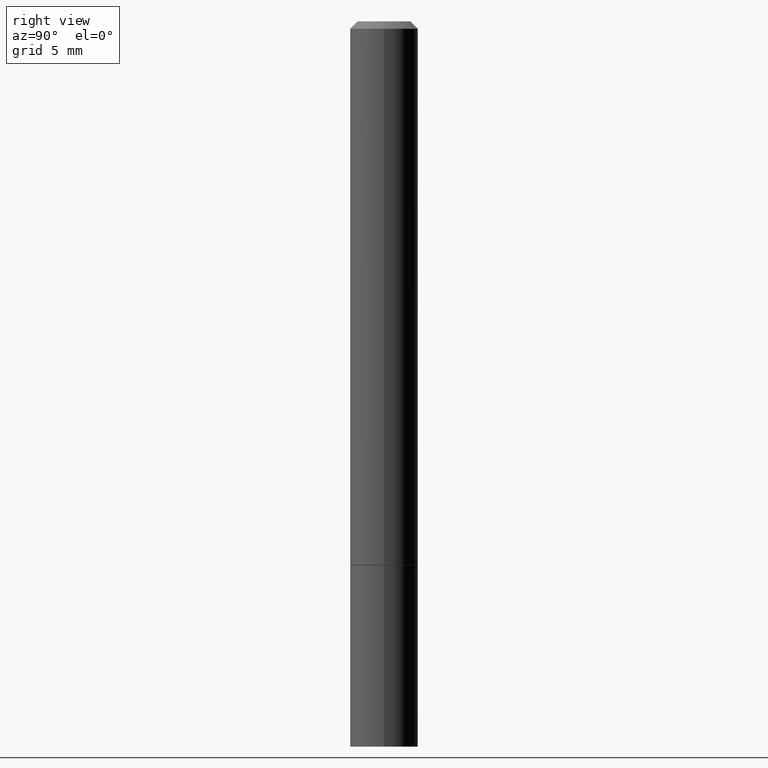
[diagram: clean part render]
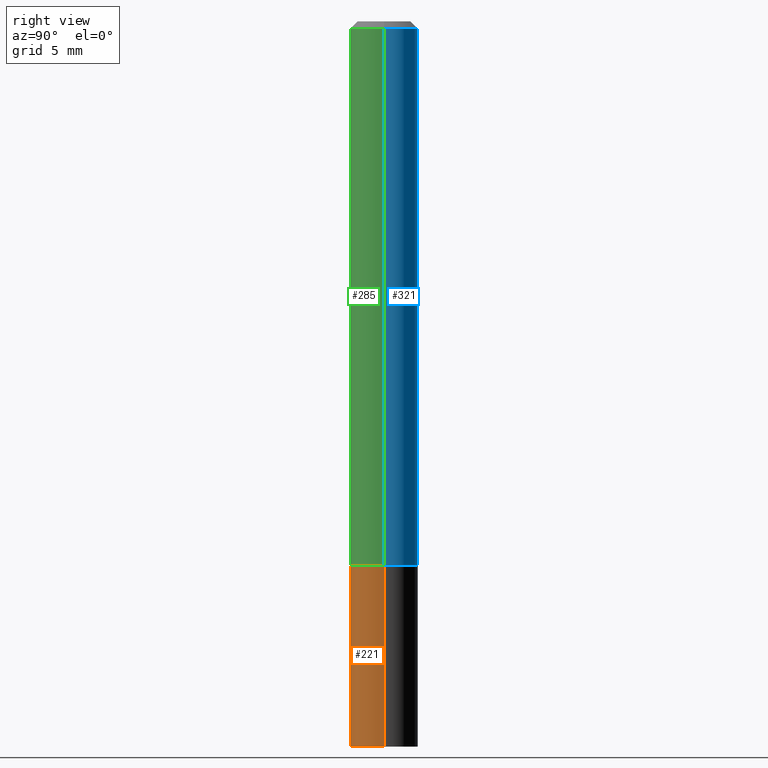
[diagram: same view with three faces highlighted in distinct colors, each labeled with its STEP entity id]
A machine part, right view with three faces highlighted in distinct colors.
Their STEP definitions:

[orange] entity #221 — the highlighted cylindrical surface (edge-blend (fillet) strip) has radius 2.3813 mm, axis along (-0, 0, 1).
#7 = EDGE_CURVE ( 'NONE', #115, #194, #32, .T. ) ;
#22 = ORIENTED_EDGE ( 'NONE', *, *, #291, .F. ) ;
#27 = ORIENTED_EDGE ( 'NONE', *, *, #64, .F. ) ;
#32 = CIRCLE ( 'NONE', #84, 0.09375000000000001388 ) ;
#45 = CARTESIAN_POINT ( 'NONE',  ( -0.09375000000000001388, -5.443958528200409958E-15, -2.000000000000000000 ) ) ;
#60 = AXIS2_PLACEMENT_3D ( 'NONE', #348, #234, #97 ) ;
#64 = EDGE_CURVE ( 'NONE', #115, #249, #70, .T. ) ;
#70 = LINE ( 'NONE', #358, #206 ) ;
#77 = VECTOR ( 'NONE', #78, 39.37007874015748143 ) ;
#78 = DIRECTION ( 'NONE',  ( -2.445468806185136877E-29, 3.491481338843145188E-15, 1.000000000000000000 ) ) ;
#84 = AXIS2_PLACEMENT_3D ( 'NONE', #230, #365, #307 ) ;
#87 = CARTESIAN_POINT ( 'NONE',  ( 0.09375000000000001388, -7.637615428719378669E-15, -2.000000000000000000 ) ) ;
#97 = DIRECTION ( 'NONE',  ( 1.000000000000000000, -6.982962677686261189E-15, 0.000000000000000000 ) ) ;
#111 = CARTESIAN_POINT ( 'NONE',  ( 0.09375000000000001388, -5.891874759297804892E-15, -1.499999999999999778 ) ) ;
#115 = VERTEX_POINT ( 'NONE', #45 ) ;
#135 = CIRCLE ( 'NONE', #60, 0.09375000000000001388 ) ;
#151 = ORIENTED_EDGE ( 'NONE', *, *, #316, .T. ) ;
#157 = CARTESIAN_POINT ( 'NONE',  ( -0.09375000000000001388, -5.443958528200409958E-15, -1.499999999999999778 ) ) ;
#159 = CYLINDRICAL_SURFACE ( 'NONE', #172, 0.09375000000000001388 ) ;
#172 = AXIS2_PLACEMENT_3D ( 'NONE', #280, #366, #284 ) ;
#181 = CARTESIAN_POINT ( 'NONE',  ( 0.09375000000000001388, -6.546527510330875041E-16, 4.571415727308690506E-30 ) ) ;
#194 = VERTEX_POINT ( 'NONE', #87 ) ;
#206 = VECTOR ( 'NONE', #364, 39.37007874015748143 ) ;
#221 = ADVANCED_FACE ( 'NONE', ( #306 ), #159, .T. ) ;
#230 = CARTESIAN_POINT ( 'NONE',  ( 4.890937612370273194E-29, -6.982962677686291165E-15, -2.000000000000000000 ) ) ;
#234 = DIRECTION ( 'NONE',  ( -2.445468806185136597E-29, 3.491481338843145583E-15, 1.000000000000000000 ) ) ;
#236 = VERTEX_POINT ( 'NONE', #111 ) ;
#242 = LINE ( 'NONE', #181, #77 ) ;
#249 = VERTEX_POINT ( 'NONE', #157 ) ;
#280 = CARTESIAN_POINT ( 'NONE',  ( 0.000000000000000000, 0.000000000000000000, 0.000000000000000000 ) ) ;
#284 = DIRECTION ( 'NONE',  ( 1.000000000000000000, -6.982962677686265922E-15, 4.876176775795935793E-29 ) ) ;
#291 = EDGE_CURVE ( 'NONE', #249, #236, #135, .T. ) ;
#306 = FACE_OUTER_BOUND ( 'NONE', #327, .T. ) ;
#307 = DIRECTION ( 'NONE',  ( 1.000000000000000000, -6.982962677686261189E-15, 0.000000000000000000 ) ) ;
#316 = EDGE_CURVE ( 'NONE', #194, #236, #242, .T. ) ;
#327 = EDGE_LOOP ( 'NONE', ( #27, #347, #151, #22 ) ) ;
#347 = ORIENTED_EDGE ( 'NONE', *, *, #7, .T. ) ;
#348 = CARTESIAN_POINT ( 'NONE',  ( 3.668203209277704335E-29, -5.237222008264717388E-15, -1.499999999999999778 ) ) ;
#358 = CARTESIAN_POINT ( 'NONE',  ( -0.09375000000000001388, 6.661338147750940229E-16, -4.611501647113973995E-30 ) ) ;
#364 = DIRECTION ( 'NONE',  ( -2.445468806185136877E-29, 3.491481338843145188E-15, 1.000000000000000000 ) ) ;
#365 = DIRECTION ( 'NONE',  ( -2.445468806185136597E-29, 3.491481338843145583E-15, 1.000000000000000000 ) ) ;
#366 = DIRECTION ( 'NONE',  ( -2.445468806185136597E-29, 3.491481338843145583E-15, 1.000000000000000000 ) ) ;

[blue] entity #321 — the highlighted cylindrical surface (edge-blend (fillet) strip) has radius 2.3812 mm, axis along (-0, 0, 1).
#25 = CIRCLE ( 'NONE', #326, 0.09375000000000001388 ) ;
#30 = DIRECTION ( 'NONE',  ( 1.000000000000000000, -6.982962677686266711E-15, 4.876176775795935793E-29 ) ) ;
#35 = FACE_OUTER_BOUND ( 'NONE', #217, .T. ) ;
#43 = CARTESIAN_POINT ( 'NONE',  ( 3.665757740471518171E-29, -5.233730526925873592E-15, -1.498999999999999444 ) ) ;
#55 = CARTESIAN_POINT ( 'NONE',  ( 0.09374999999999991673, -6.546527510330869125E-16, 4.571415727308685602E-30 ) ) ;
#58 = CARTESIAN_POINT ( 'NONE',  ( -0.09375000000000001388, -1.985646262076272154E-15, -1.498999999999999444 ) ) ;
#71 = DIRECTION ( 'NONE',  ( -2.445468806185136877E-29, 3.491481338843145188E-15, 1.000000000000000000 ) ) ;
#75 = DIRECTION ( 'NONE',  ( 1.000000000000000000, -6.982962677686261189E-15, 0.000000000000000000 ) ) ;
#91 = ORIENTED_EDGE ( 'NONE', *, *, #245, .F. ) ;
#116 = ORIENTED_EDGE ( 'NONE', *, *, #255, .T. ) ;
#129 = ORIENTED_EDGE ( 'NONE', *, *, #149, .F. ) ;
#137 = VERTEX_POINT ( 'NONE', #313 ) ;
#141 = VERTEX_POINT ( 'NONE', #265 ) ;
#149 = EDGE_CURVE ( 'NONE', #137, #179, #257, .T. ) ;
#163 = CARTESIAN_POINT ( 'NONE',  ( 0.000000000000000000, 0.000000000000000000, 0.000000000000000000 ) ) ;
#164 = VECTOR ( 'NONE', #190, 39.37007874015748143 ) ;
#179 = VERTEX_POINT ( 'NONE', #254 ) ;
#185 = DIRECTION ( 'NONE',  ( -2.445468806185136597E-29, 3.491481338843145583E-15, 1.000000000000000000 ) ) ;
#190 = DIRECTION ( 'NONE',  ( -2.445468806185136877E-29, 3.491481338843145188E-15, 1.000000000000000000 ) ) ;
#193 = CARTESIAN_POINT ( 'NONE',  ( -0.09374999999999991673, 6.661338147750933326E-16, -4.611501647113969791E-30 ) ) ;
#198 = CIRCLE ( 'NONE', #345, 0.09374999999999981959 ) ;
#205 = AXIS2_PLACEMENT_3D ( 'NONE', #163, #290, #30 ) ;
#209 = VERTEX_POINT ( 'NONE', #58 ) ;
#217 = EDGE_LOOP ( 'NONE', ( #116, #298, #91, #129 ) ) ;
#245 = EDGE_CURVE ( 'NONE', #179, #141, #198, .T. ) ;
#254 = CARTESIAN_POINT ( 'NONE',  ( 0.09374999999999981959, -7.130013140679428044E-16, -0.02000000000000003511 ) ) ;
#255 = EDGE_CURVE ( 'NONE', #137, #209, #25, .T. ) ;
#257 = LINE ( 'NONE', #55, #164 ) ;
#259 = VECTOR ( 'NONE', #71, 39.37007874015748143 ) ;
#265 = CARTESIAN_POINT ( 'NONE',  ( -0.09374999999999981959, 5.848231242562233185E-16, -0.02000000000000003511 ) ) ;
#290 = DIRECTION ( 'NONE',  ( -2.445468806185136597E-29, 3.491481338843145583E-15, 1.000000000000000000 ) ) ;
#294 = LINE ( 'NONE', #193, #259 ) ;
#296 = CYLINDRICAL_SURFACE ( 'NONE', #205, 0.09374999999999991673 ) ;
#298 = ORIENTED_EDGE ( 'NONE', *, *, #337, .T. ) ;
#308 = DIRECTION ( 'NONE',  ( 1.000000000000000000, -6.982962677686266711E-15, 0.000000000000000000 ) ) ;
#313 = CARTESIAN_POINT ( 'NONE',  ( 0.09375000000000001388, -5.888383277958961096E-15, -1.498999999999999444 ) ) ;
#321 = ADVANCED_FACE ( 'NONE', ( #35 ), #296, .T. ) ;
#326 = AXIS2_PLACEMENT_3D ( 'NONE', #43, #185, #75 ) ;
#335 = DIRECTION ( 'NONE',  ( -2.445468806185136597E-29, 3.491481338843145583E-15, 1.000000000000000000 ) ) ;
#337 = EDGE_CURVE ( 'NONE', #209, #141, #294, .T. ) ;
#343 = CARTESIAN_POINT ( 'NONE',  ( 4.890937612370281041E-31, -6.982962677686302702E-17, -0.02000000000000003511 ) ) ;
#345 = AXIS2_PLACEMENT_3D ( 'NONE', #343, #335, #308 ) ;

[green] entity #285 — the highlighted cylindrical surface (edge-blend (fillet) strip) has radius 2.3812 mm, axis along (-0, 0, 1).
#12 = DIRECTION ( 'NONE',  ( 1.000000000000000000, -6.982962677686266711E-15, 4.876176775795935793E-29 ) ) ;
#20 = CYLINDRICAL_SURFACE ( 'NONE', #227, 0.09374999999999991673 ) ;
#44 = ORIENTED_EDGE ( 'NONE', *, *, #215, .F. ) ;
#51 = FACE_OUTER_BOUND ( 'NONE', #338, .T. ) ;
#55 = CARTESIAN_POINT ( 'NONE',  ( 0.09374999999999991673, -6.546527510330869125E-16, 4.571415727308685602E-30 ) ) ;
#58 = CARTESIAN_POINT ( 'NONE',  ( -0.09375000000000001388, -1.985646262076272154E-15, -1.498999999999999444 ) ) ;
#62 = DIRECTION ( 'NONE',  ( 1.000000000000000000, -6.982962677686266711E-15, 0.000000000000000000 ) ) ;
#71 = DIRECTION ( 'NONE',  ( -2.445468806185136877E-29, 3.491481338843145188E-15, 1.000000000000000000 ) ) ;
#76 = CIRCLE ( 'NONE', #188, 0.09375000000000001388 ) ;
#94 = DIRECTION ( 'NONE',  ( -2.445468806185136597E-29, 3.491481338843145583E-15, 1.000000000000000000 ) ) ;
#101 = CARTESIAN_POINT ( 'NONE',  ( 4.890937612370281041E-31, -6.982962677686302702E-17, -0.02000000000000003511 ) ) ;
#137 = VERTEX_POINT ( 'NONE', #313 ) ;
#141 = VERTEX_POINT ( 'NONE', #265 ) ;
#149 = EDGE_CURVE ( 'NONE', #137, #179, #257, .T. ) ;
#162 = EDGE_CURVE ( 'NONE', #209, #137, #76, .T. ) ;
#164 = VECTOR ( 'NONE', #190, 39.37007874015748143 ) ;
#179 = VERTEX_POINT ( 'NONE', #254 ) ;
#184 = CIRCLE ( 'NONE', #297, 0.09374999999999981959 ) ;
#188 = AXIS2_PLACEMENT_3D ( 'NONE', #289, #253, #318 ) ;
#190 = DIRECTION ( 'NONE',  ( -2.445468806185136877E-29, 3.491481338843145188E-15, 1.000000000000000000 ) ) ;
#193 = CARTESIAN_POINT ( 'NONE',  ( -0.09374999999999991673, 6.661338147750933326E-16, -4.611501647113969791E-30 ) ) ;
#195 = CARTESIAN_POINT ( 'NONE',  ( 0.000000000000000000, 0.000000000000000000, 0.000000000000000000 ) ) ;
#209 = VERTEX_POINT ( 'NONE', #58 ) ;
#211 = ORIENTED_EDGE ( 'NONE', *, *, #337, .F. ) ;
#215 = EDGE_CURVE ( 'NONE', #141, #179, #184, .T. ) ;
#220 = ORIENTED_EDGE ( 'NONE', *, *, #162, .T. ) ;
#227 = AXIS2_PLACEMENT_3D ( 'NONE', #195, #300, #12 ) ;
#253 = DIRECTION ( 'NONE',  ( -2.445468806185136597E-29, 3.491481338843145583E-15, 1.000000000000000000 ) ) ;
#254 = CARTESIAN_POINT ( 'NONE',  ( 0.09374999999999981959, -7.130013140679428044E-16, -0.02000000000000003511 ) ) ;
#257 = LINE ( 'NONE', #55, #164 ) ;
#259 = VECTOR ( 'NONE', #71, 39.37007874015748143 ) ;
#261 = ORIENTED_EDGE ( 'NONE', *, *, #149, .T. ) ;
#265 = CARTESIAN_POINT ( 'NONE',  ( -0.09374999999999981959, 5.848231242562233185E-16, -0.02000000000000003511 ) ) ;
#285 = ADVANCED_FACE ( 'NONE', ( #51 ), #20, .T. ) ;
#289 = CARTESIAN_POINT ( 'NONE',  ( 3.665757740471518171E-29, -5.233730526925873592E-15, -1.498999999999999444 ) ) ;
#294 = LINE ( 'NONE', #193, #259 ) ;
#297 = AXIS2_PLACEMENT_3D ( 'NONE', #101, #94, #62 ) ;
#300 = DIRECTION ( 'NONE',  ( -2.445468806185136597E-29, 3.491481338843145583E-15, 1.000000000000000000 ) ) ;
#313 = CARTESIAN_POINT ( 'NONE',  ( 0.09375000000000001388, -5.888383277958961096E-15, -1.498999999999999444 ) ) ;
#318 = DIRECTION ( 'NONE',  ( 1.000000000000000000, -6.982962677686261189E-15, 0.000000000000000000 ) ) ;
#337 = EDGE_CURVE ( 'NONE', #209, #141, #294, .T. ) ;
#338 = EDGE_LOOP ( 'NONE', ( #211, #220, #261, #44 ) ) ;